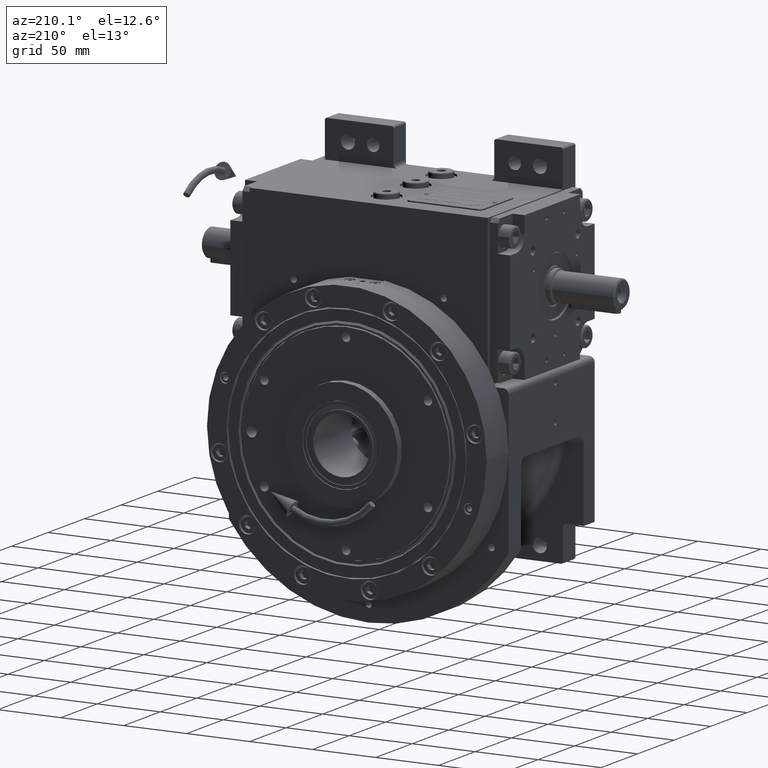
[diagram: clean part render]
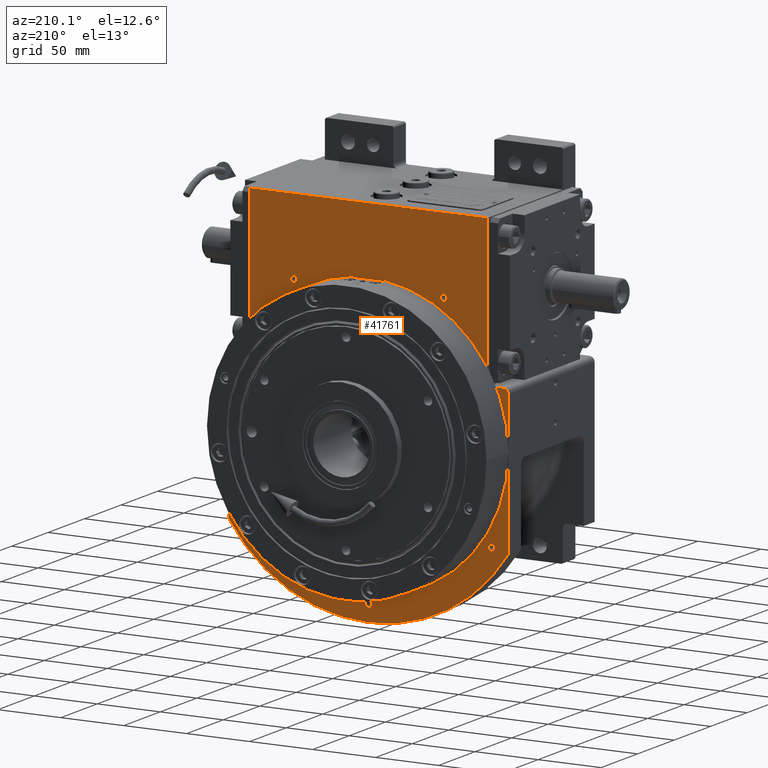
[diagram: same view with one face highlighted and labeled with its STEP entity id]
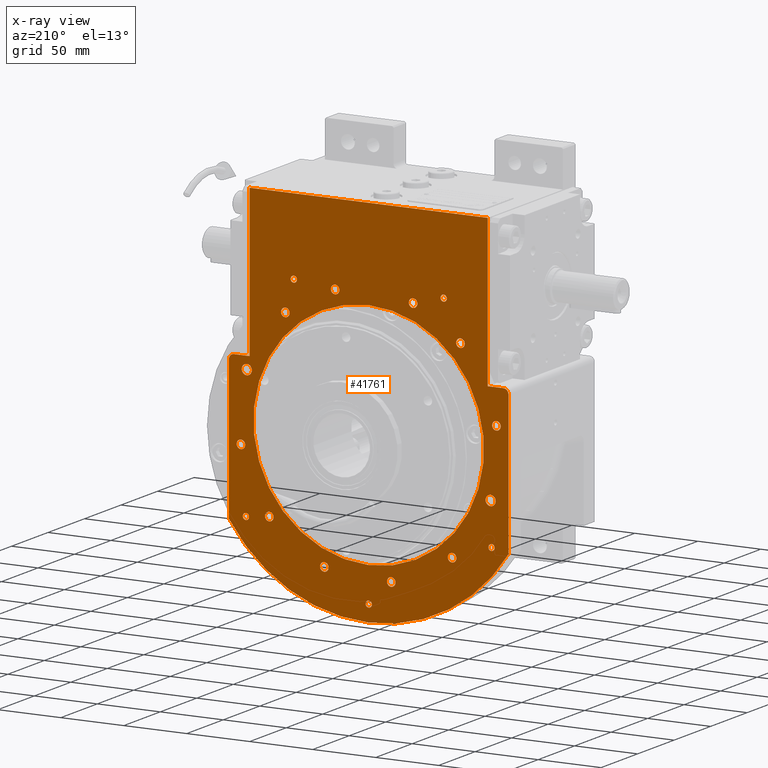
[diagram: x-ray of the same camera — body ghosted, the highlighted face saturated]
A machine part, auxiliary view. The second image highlights one B-rep face of the part: STEP entity #41761.
The next image is the same camera in x-ray: the body ghosted, the highlighted face saturated — about 0% of this face is hidden behind the body in this view.
In plain terms, the highlighted planar face has unit normal (0, 1, 0).
Its self-contained STEP definition (entity closure, byte-faithful):
#227 = EDGE_CURVE ( 'NONE', #44547, #17200, #36453, .T. ) ;
#294 = EDGE_CURVE ( 'NONE', #51834, #5863, #2268, .T. ) ;
#309 = CIRCLE ( 'NONE', #51069, 3.400000000000000355 ) ;
#405 = EDGE_CURVE ( 'NONE', #29475, #15967, #44179, .T. ) ;
#415 = DIRECTION ( 'NONE',  ( -1.000000000000000000, 0.000000000000000000, 0.000000000000000000 ) ) ;
#704 = VERTEX_POINT ( 'NONE', #35765 ) ;
#820 = EDGE_CURVE ( 'NONE', #44652, #11124, #50895, .T. ) ;
#851 = ORIENTED_EDGE ( 'NONE', *, *, #54852, .F. ) ;
#924 = CARTESIAN_POINT ( 'NONE',  ( -107.0000000000000000, 64.50000000000000000, 45.00000000000000000 ) ) ;
#927 = AXIS2_PLACEMENT_3D ( 'NONE', #26879, #21325, #53107 ) ;
#983 = CARTESIAN_POINT ( 'NONE',  ( 94.97909327038999550, 64.50000000000000000, -68.25559592577448598 ) ) ;
#1396 = CIRCLE ( 'NONE', #17903, 3.400000000000000355 ) ;
#1664 = VERTEX_POINT ( 'NONE', #23495 ) ;
#1729 = ORIENTED_EDGE ( 'NONE', *, *, #65168, .T. ) ;
#1762 = EDGE_CURVE ( 'NONE', #52508, #68018, #9017, .T. ) ;
#1954 = CARTESIAN_POINT ( 'NONE',  ( -38.62807476254390338, 64.50000000000000000, 96.78833994094861737 ) ) ;
#2165 = LINE ( 'NONE', #17687, #61062 ) ;
#2192 = DIRECTION ( 'NONE',  ( 1.000000000000000000, 0.000000000000000000, 0.000000000000000000 ) ) ;
#2268 = CIRCLE ( 'NONE', #29849, 2.500000000000000000 ) ;
#2438 = DIRECTION ( 'NONE',  ( 0.000000000000000000, 1.000000000000000000, 0.000000000000000000 ) ) ;
#2478 = EDGE_CURVE ( 'NONE', #63508, #60038, #50614, .T. ) ;
#2621 = AXIS2_PLACEMENT_3D ( 'NONE', #23602, #48829, #27407 ) ;
#3048 = CARTESIAN_POINT ( 'NONE',  ( -111.0000000000000000, 64.50000000000000000, 41.00000000000000000 ) ) ;
#3299 = CARTESIAN_POINT ( 'NONE',  ( 0.000000000000000000, 64.50000000000000000, 0.000000000000000000 ) ) ;
#3300 = ORIENTED_EDGE ( 'NONE', *, *, #47374, .T. ) ;
#3359 = AXIS2_PLACEMENT_3D ( 'NONE', #8230, #60410, #50720 ) ;
#3425 = FACE_BOUND ( 'NONE', #67729, .T. ) ;
#3777 = FACE_BOUND ( 'NONE', #18942, .T. ) ;
#3787 = VERTEX_POINT ( 'NONE', #924 ) ;
#3882 = EDGE_CURVE ( 'NONE', #39537, #32041, #45139, .T. ) ;
#3979 = DIRECTION ( 'NONE',  ( 0.000000000000000000, 0.000000000000000000, 1.000000000000000000 ) ) ;
#4327 = CIRCLE ( 'NONE', #5452, 4.000000000000003553 ) ;
#4536 = AXIS2_PLACEMENT_3D ( 'NONE', #11396, #37649, #58746 ) ;
#4726 = AXIS2_PLACEMENT_3D ( 'NONE', #57998, #27248, #22395 ) ;
#4900 = DIRECTION ( 'NONE',  ( 1.000000000000000000, 0.000000000000000000, -4.081702296416015997E-15 ) ) ;
#5452 = AXIS2_PLACEMENT_3D ( 'NONE', #13604, #51277, #61304 ) ;
#5565 = DIRECTION ( 'NONE',  ( 0.000000000000000000, 1.000000000000000000, 0.000000000000000000 ) ) ;
#5577 = EDGE_CURVE ( 'NONE', #28979, #3787, #4327, .T. ) ;
#5682 = DIRECTION ( 'NONE',  ( 0.000000000000000000, 1.000000000000000000, 0.000000000000000000 ) ) ;
#5693 = AXIS2_PLACEMENT_3D ( 'NONE', #29351, #50413, #18599 ) ;
#5863 = VERTEX_POINT ( 'NONE', #21043 ) ;
#6335 = ORIENTED_EDGE ( 'NONE', *, *, #39811, .F. ) ;
#6889 = EDGE_LOOP ( 'NONE', ( #66818, #44843 ) ) ;
#7258 = EDGE_CURVE ( 'NONE', #43189, #66049, #53484, .T. ) ;
#7272 = ORIENTED_EDGE ( 'NONE', *, *, #35098, .F. ) ;
#7365 = CARTESIAN_POINT ( 'NONE',  ( -107.0000000000000000, 64.50000000000000000, 45.00000000000000000 ) ) ;
#7367 = CARTESIAN_POINT ( 'NONE',  ( -94.50000000000000000, 64.50000000000000000, 45.00000000000000000 ) ) ;
#7947 = CARTESIAN_POINT ( 'NONE',  ( 62.80712379771350129, 64.50000000000000000, 78.90257764125479412 ) ) ;
#8150 = CARTESIAN_POINT ( 'NONE',  ( 96.78833994094853210, 64.50000000000000000, 39.22807476254396164 ) ) ;
#8171 = DIRECTION ( 'NONE',  ( 1.000000000000000000, 0.000000000000000000, 0.000000000000000000 ) ) ;
#8230 = CARTESIAN_POINT ( 'NONE',  ( -96.78833994094853210, 64.50000000000000000, -35.22807476254394743 ) ) ;
#8427 = DIRECTION ( 'NONE',  ( 0.000000000000000000, 1.000000000000000000, 0.000000000000000000 ) ) ;
#8482 = DIRECTION ( 'NONE',  ( -0.000000000000000000, -1.000000000000000000, -0.000000000000000000 ) ) ;
#8906 = AXIS2_PLACEMENT_3D ( 'NONE', #54413, #42989, #26795 ) ;
#9017 = CIRCLE ( 'NONE', #5693, 3.400000000000000355 ) ;
#9606 = CARTESIAN_POINT ( 'NONE',  ( -35.22807476254389769, 64.50000000000000000, 96.78833994094861737 ) ) ;
#9627 = EDGE_LOOP ( 'NONE', ( #35487, #851 ) ) ;
#9661 = DIRECTION ( 'NONE',  ( 1.000000000000000000, 0.000000000000000000, 0.000000000000000000 ) ) ;
#9709 = CARTESIAN_POINT ( 'NONE',  ( -62.80712379771350129, 64.50000000000000000, -78.90257764125469464 ) ) ;
#9867 = DIRECTION ( 'NONE',  ( 1.000000000000000000, 0.000000000000000000, 4.081702296416015997E-15 ) ) ;
#10534 = EDGE_LOOP ( 'NONE', ( #6335, #53895 ) ) ;
#10786 = ORIENTED_EDGE ( 'NONE', *, *, #1762, .F. ) ;
#10791 = AXIS2_PLACEMENT_3D ( 'NONE', #40552, #62640, #15282 ) ;
#10810 = VERTEX_POINT ( 'NONE', #33011 ) ;
#10858 = ORIENTED_EDGE ( 'NONE', *, *, #3882, .T. ) ;
#10928 = CARTESIAN_POINT ( 'NONE',  ( 31.82807476254389911, 64.50000000000000000, -96.78833994094861737 ) ) ;
#11027 = VERTEX_POINT ( 'NONE', #44752 ) ;
#11124 = VERTEX_POINT ( 'NONE', #40571 ) ;
#11268 = DIRECTION ( 'NONE',  ( 1.000000000000000000, 0.000000000000000000, 0.000000000000000000 ) ) ;
#11396 = CARTESIAN_POINT ( 'NONE',  ( -72.83199846221440055, 64.50000000000000000, 72.83199846221440055 ) ) ;
#11525 = LINE ( 'NONE', #7365, #60617 ) ;
#11670 = DIRECTION ( 'NONE',  ( 0.000000000000000000, 1.000000000000000000, 0.000000000000000000 ) ) ;
#11714 = EDGE_LOOP ( 'NONE', ( #67920, #58100 ) ) ;
#12127 = CARTESIAN_POINT ( 'NONE',  ( -99.97909327038999550, 64.50000000000000000, -68.25559592577448598 ) ) ;
#12422 = DIRECTION ( 'NONE',  ( 0.000000000000000000, 0.000000000000000000, 1.000000000000000000 ) ) ;
#12697 = EDGE_LOOP ( 'NONE', ( #26452, #67892 ) ) ;
#12752 = AXIS2_PLACEMENT_3D ( 'NONE', #12896, #28832, #13231 ) ;
#12754 = DIRECTION ( 'NONE',  ( 0.000000000000000000, 1.000000000000000000, 0.000000000000000000 ) ) ;
#12835 = DIRECTION ( 'NONE',  ( 0.000000000000000000, 1.000000000000000000, 0.000000000000000000 ) ) ;
#12849 = CARTESIAN_POINT ( 'NONE',  ( 2.500000000000000000, 64.50000000000000000, -119.0000000000000000 ) ) ;
#12896 = CARTESIAN_POINT ( 'NONE',  ( -66.20712379771349276, 64.50000000000000000, -78.90257764125469464 ) ) ;
#12947 = CIRCLE ( 'NONE', #25265, 132.0000000000000853 ) ;
#12991 = CARTESIAN_POINT ( 'NONE',  ( 107.0000000000000000, 64.50000000000000000, 45.00000000000000000 ) ) ;
#13231 = DIRECTION ( 'NONE',  ( 1.000000000000000000, 0.000000000000000000, 0.000000000000000000 ) ) ;
#13604 = CARTESIAN_POINT ( 'NONE',  ( -107.0000000000000000, 64.50000000000000000, 41.00000000000000000 ) ) ;
#13744 = EDGE_LOOP ( 'NONE', ( #58963, #18127 ) ) ;
#13791 = FACE_BOUND ( 'NONE', #51605, .T. ) ;
#13837 = DIRECTION ( 'NONE',  ( 0.000000000000000000, 1.000000000000000000, 0.000000000000000000 ) ) ;
#14161 = CARTESIAN_POINT ( 'NONE',  ( -59.50000000000000000, 64.50000000000000000, 103.0570230503481923 ) ) ;
#14668 = ORIENTED_EDGE ( 'NONE', *, *, #16806, .T. ) ;
#14708 = CIRCLE ( 'NONE', #2621, 3.400000000000000355 ) ;
#14793 = FACE_BOUND ( 'NONE', #25132, .T. ) ;
#15232 = CARTESIAN_POINT ( 'NONE',  ( 59.50000000000000000, 64.50000000000000000, 103.0570230503481923 ) ) ;
#15282 = DIRECTION ( 'NONE',  ( 1.000000000000000000, 0.000000000000000000, -2.040851148208007998E-15 ) ) ;
#15374 = EDGE_CURVE ( 'NONE', #28464, #58745, #20131, .T. ) ;
#15833 = CARTESIAN_POINT ( 'NONE',  ( -66.20712379771349276, 64.50000000000000000, -78.90257764125469464 ) ) ;
#15886 = EDGE_CURVE ( 'NONE', #10810, #28979, #2165, .T. ) ;
#15967 = VERTEX_POINT ( 'NONE', #23924 ) ;
#16302 = ORIENTED_EDGE ( 'NONE', *, *, #44094, .F. ) ;
#16364 = DIRECTION ( 'NONE',  ( 0.000000000000000000, 0.000000000000000000, -1.000000000000000000 ) ) ;
#16453 = CIRCLE ( 'NONE', #38524, 3.400000000000000355 ) ;
#16463 = LINE ( 'NONE', #21668, #21367 ) ;
#16698 = EDGE_CURVE ( 'NONE', #62587, #50656, #64120, .T. ) ;
#16806 = EDGE_CURVE ( 'NONE', #34114, #36448, #45387, .T. ) ;
#16942 = DIRECTION ( 'NONE',  ( 0.000000000000000000, 1.000000000000000000, 0.000000000000000000 ) ) ;
#17200 = VERTEX_POINT ( 'NONE', #58592 ) ;
#17256 = DIRECTION ( 'NONE',  ( -0.000000000000000000, -1.000000000000000000, -0.000000000000000000 ) ) ;
#17312 = CARTESIAN_POINT ( 'NONE',  ( 96.78833994094853210, 64.50000000000000000, 35.22807476254394743 ) ) ;
#17353 = DIRECTION ( 'NONE',  ( 1.000000000000000000, 0.000000000000000000, -4.081702296416015997E-15 ) ) ;
#17651 = DIRECTION ( 'NONE',  ( 0.000000000000000000, 1.000000000000000000, 0.000000000000000000 ) ) ;
#17687 = CARTESIAN_POINT ( 'NONE',  ( -111.0000000000000000, 64.50000000000000000, -71.43528539874399996 ) ) ;
#17775 = AXIS2_PLACEMENT_3D ( 'NONE', #35923, #36957, #58043 ) ;
#17831 = VECTOR ( 'NONE', #16364, 1000.000000000000000 ) ;
#17903 = AXIS2_PLACEMENT_3D ( 'NONE', #15833, #58704, #57323 ) ;
#17918 = DIRECTION ( 'NONE',  ( 0.000000000000000000, 1.000000000000000000, 0.000000000000000000 ) ) ;
#18127 = ORIENTED_EDGE ( 'NONE', *, *, #294, .F. ) ;
#18254 = CARTESIAN_POINT ( 'NONE',  ( -35.22807476254389769, 64.50000000000000000, 96.78833994094861737 ) ) ;
#18427 = CARTESIAN_POINT ( 'NONE',  ( -21.28576229969380051, 64.50000000000000000, -101.4351985602574047 ) ) ;
#18599 = DIRECTION ( 'NONE',  ( -1.000000000000000000, 0.000000000000000000, 0.000000000000000000 ) ) ;
#18624 = FACE_BOUND ( 'NONE', #38536, .T. ) ;
#18730 = EDGE_CURVE ( 'NONE', #3787, #56540, #11525, .T. ) ;
#18821 = CARTESIAN_POINT ( 'NONE',  ( 97.47909327039000971, 64.50000000000000000, -68.25559592577448598 ) ) ;
#18874 = ORIENTED_EDGE ( 'NONE', *, *, #57750, .T. ) ;
#18942 = EDGE_LOOP ( 'NONE', ( #10786, #43327 ) ) ;
#18951 = DIRECTION ( 'NONE',  ( 0.000000000000000000, 1.000000000000000000, 0.000000000000000000 ) ) ;
#19094 = DIRECTION ( 'NONE',  ( 1.000000000000000000, 0.000000000000000000, 0.000000000000000000 ) ) ;
#19297 = VERTEX_POINT ( 'NONE', #58282 ) ;
#19365 = CARTESIAN_POINT ( 'NONE',  ( 35.22807476254389769, 64.50000000000000000, -96.78833994094861737 ) ) ;
#19564 = ORIENTED_EDGE ( 'NONE', *, *, #7258, .F. ) ;
#19824 = ORIENTED_EDGE ( 'NONE', *, *, #58462, .F. ) ;
#20131 = CIRCLE ( 'NONE', #22371, 3.400000000000000355 ) ;
#20308 = VECTOR ( 'NONE', #11268, 1000.000000000000000 ) ;
#20447 = ORIENTED_EDGE ( 'NONE', *, *, #59197, .F. ) ;
#20552 = EDGE_CURVE ( 'NONE', #11124, #44652, #47588, .T. ) ;
#20644 = DIRECTION ( 'NONE',  ( 0.000000000000000000, 1.000000000000000000, 0.000000000000000000 ) ) ;
#20665 = AXIS2_PLACEMENT_3D ( 'NONE', #15232, #5565, #415 ) ;
#20954 = EDGE_CURVE ( 'NONE', #32041, #11027, #27132, .T. ) ;
#21043 = CARTESIAN_POINT ( 'NONE',  ( -2.500000000000000000, 64.50000000000000000, -119.0000000000000000 ) ) ;
#21284 = VERTEX_POINT ( 'NONE', #67129 ) ;
#21325 = DIRECTION ( 'NONE',  ( 0.000000000000000000, 1.000000000000000000, 0.000000000000000000 ) ) ;
#21367 = VECTOR ( 'NONE', #22010, 1000.000000000000000 ) ;
#21668 = CARTESIAN_POINT ( 'NONE',  ( 111.0000000000000000, 64.50000000000000000, 41.00000000000000000 ) ) ;
#21855 = CIRCLE ( 'NONE', #30697, 2.500000000000002220 ) ;
#22010 = DIRECTION ( 'NONE',  ( -6.319570704518690450E-16, 0.000000000000000000, -1.000000000000000000 ) ) ;
#22318 = AXIS2_PLACEMENT_3D ( 'NONE', #55607, #18951, #44557 ) ;
#22371 = AXIS2_PLACEMENT_3D ( 'NONE', #9606, #30701, #33346 ) ;
#22395 = DIRECTION ( 'NONE',  ( 1.000000000000000000, 0.000000000000000000, -2.040851148208007998E-15 ) ) ;
#22709 = ORIENTED_EDGE ( 'NONE', *, *, #53782, .F. ) ;
#22793 = EDGE_LOOP ( 'NONE', ( #3300, #1729, #52317, #25414, #43909, #44411, #10858, #65104, #39705, #14668 ) ) ;
#22815 = CARTESIAN_POINT ( 'NONE',  ( 0.000000000000000000, 64.50000000000000000, 0.000000000000000000 ) ) ;
#23173 = CARTESIAN_POINT ( 'NONE',  ( 7.105427357600998703E-15, 64.50000000000000000, 0.000000000000000000 ) ) ;
#23307 = VERTEX_POINT ( 'NONE', #62815 ) ;
#23495 = CARTESIAN_POINT ( 'NONE',  ( -76.23199846221440623, 64.50000000000000000, 72.83199846221440055 ) ) ;
#23602 = CARTESIAN_POINT ( 'NONE',  ( 101.4351985602574047, 64.50000000000000000, -17.88576229969384812 ) ) ;
#23924 = CARTESIAN_POINT ( 'NONE',  ( -62.00000000000000000, 64.50000000000000000, 103.0570230503481923 ) ) ;
#24113 = CIRCLE ( 'NONE', #48376, 3.400000000000000355 ) ;
#24197 = LINE ( 'NONE', #35566, #50682 ) ;
#24208 = CARTESIAN_POINT ( 'NONE',  ( -14.48576229969382112, 64.50000000000000000, -101.4351985602574047 ) ) ;
#24279 = CIRCLE ( 'NONE', #40787, 2.500000000000002220 ) ;
#24314 = EDGE_CURVE ( 'NONE', #66662, #23307, #14708, .T. ) ;
#24510 = VERTEX_POINT ( 'NONE', #67078 ) ;
#24529 = FACE_BOUND ( 'NONE', #50006, .T. ) ;
#25008 = DIRECTION ( 'NONE',  ( 1.000000000000000000, 0.000000000000000000, -5.551115123125777969E-15 ) ) ;
#25132 = EDGE_LOOP ( 'NONE', ( #64365, #37217 ) ) ;
#25192 = FACE_BOUND ( 'NONE', #48228, .T. ) ;
#25265 = AXIS2_PLACEMENT_3D ( 'NONE', #23173, #2438, #64969 ) ;
#25414 = ORIENTED_EDGE ( 'NONE', *, *, #5577, .T. ) ;
#25503 = AXIS2_PLACEMENT_3D ( 'NONE', #43104, #11670, #27587 ) ;
#25806 = CIRCLE ( 'NONE', #33512, 4.000000000000010658 ) ;
#25949 = CIRCLE ( 'NONE', #45777, 3.400000000000000355 ) ;
#26175 = EDGE_CURVE ( 'NONE', #56540, #39537, #24197, .T. ) ;
#26452 = ORIENTED_EDGE ( 'NONE', *, *, #53324, .F. ) ;
#26795 = DIRECTION ( 'NONE',  ( -1.000000000000000000, 0.000000000000000000, 0.000000000000000000 ) ) ;
#26879 = CARTESIAN_POINT ( 'NONE',  ( -97.47909327039000971, 64.50000000000000000, -68.25559592577448598 ) ) ;
#27132 = LINE ( 'NONE', #48183, #17831 ) ;
#27248 = DIRECTION ( 'NONE',  ( 0.000000000000000000, 1.000000000000000000, 0.000000000000000000 ) ) ;
#27407 = DIRECTION ( 'NONE',  ( -1.000000000000000000, 0.000000000000000000, 2.040851148208007998E-15 ) ) ;
#27428 = CARTESIAN_POINT ( 'NONE',  ( -69.60712379771349845, 64.50000000000000000, -78.90257764125469464 ) ) ;
#27587 = DIRECTION ( 'NONE',  ( -1.000000000000000000, 0.000000000000000000, 0.000000000000000000 ) ) ;
#27916 = CIRCLE ( 'NONE', #42240, 2.500000000000002220 ) ;
#27938 = VERTEX_POINT ( 'NONE', #10928 ) ;
#28464 = VERTEX_POINT ( 'NONE', #29175 ) ;
#28499 = CIRCLE ( 'NONE', #10791, 3.400000000000000355 ) ;
#28662 = DIRECTION ( 'NONE',  ( -1.000000000000000000, 0.000000000000000000, 0.000000000000000000 ) ) ;
#28832 = DIRECTION ( 'NONE',  ( 0.000000000000000000, 1.000000000000000000, 0.000000000000000000 ) ) ;
#28845 = EDGE_CURVE ( 'NONE', #58745, #28464, #35465, .T. ) ;
#28941 = AXIS2_PLACEMENT_3D ( 'NONE', #61332, #40573, #29891 ) ;
#28979 = VERTEX_POINT ( 'NONE', #3048 ) ;
#29175 = CARTESIAN_POINT ( 'NONE',  ( -31.82807476254389911, 64.50000000000000000, 96.78833994094861737 ) ) ;
#29258 = CARTESIAN_POINT ( 'NONE',  ( -57.00000000000000000, 64.50000000000000000, 103.0570230503481923 ) ) ;
#29351 = CARTESIAN_POINT ( 'NONE',  ( 66.20712379771349276, 64.50000000000000000, 78.90257764125479412 ) ) ;
#29375 = FACE_BOUND ( 'NONE', #9627, .T. ) ;
#29475 = VERTEX_POINT ( 'NONE', #29258 ) ;
#29849 = AXIS2_PLACEMENT_3D ( 'NONE', #67376, #13837, #9661 ) ;
#29891 = DIRECTION ( 'NONE',  ( -1.000000000000000000, 0.000000000000000000, 2.040851148208007998E-15 ) ) ;
#30174 = EDGE_CURVE ( 'NONE', #15967, #29475, #45395, .T. ) ;
#30442 = EDGE_CURVE ( 'NONE', #1664, #19297, #51996, .T. ) ;
#30490 = EDGE_LOOP ( 'NONE', ( #19564, #46600 ) ) ;
#30697 = AXIS2_PLACEMENT_3D ( 'NONE', #66470, #8427, #25008 ) ;
#30701 = DIRECTION ( 'NONE',  ( 0.000000000000000000, 1.000000000000000000, 0.000000000000000000 ) ) ;
#30763 = CIRCLE ( 'NONE', #61686, 3.400000000000000355 ) ;
#30909 = ORIENTED_EDGE ( 'NONE', *, *, #64153, .F. ) ;
#31040 = AXIS2_PLACEMENT_3D ( 'NONE', #18254, #17918, #28662 ) ;
#31340 = LINE ( 'NONE', #63466, #20308 ) ;
#31461 = EDGE_LOOP ( 'NONE', ( #33678, #50465 ) ) ;
#31976 = CARTESIAN_POINT ( 'NONE',  ( -94.97909327038999550, 64.50000000000000000, -68.25559592577448598 ) ) ;
#32041 = VERTEX_POINT ( 'NONE', #33147 ) ;
#32376 = AXIS2_PLACEMENT_3D ( 'NONE', #35656, #56747, #4900 ) ;
#32515 = CIRCLE ( 'NONE', #52383, 91.50000000000000000 ) ;
#32756 = ORIENTED_EDGE ( 'NONE', *, *, #28845, .F. ) ;
#33011 = CARTESIAN_POINT ( 'NONE',  ( -111.0000000000000000, 64.50000000000000000, -71.43528539874399996 ) ) ;
#33147 = CARTESIAN_POINT ( 'NONE',  ( 94.50000000000000000, 64.50000000000000000, 163.5000000000000000 ) ) ;
#33346 = DIRECTION ( 'NONE',  ( 1.000000000000000000, 0.000000000000000000, 0.000000000000000000 ) ) ;
#33457 = CIRCLE ( 'NONE', #32376, 3.400000000000000355 ) ;
#33512 = AXIS2_PLACEMENT_3D ( 'NONE', #33541, #16942, #37335 ) ;
#33541 = CARTESIAN_POINT ( 'NONE',  ( 96.78833994094853210, 64.50000000000000000, 35.22807476254394743 ) ) ;
#33588 = DIRECTION ( 'NONE',  ( -1.000000000000000000, 0.000000000000000000, 0.000000000000000000 ) ) ;
#33596 = EDGE_LOOP ( 'NONE', ( #35659, #62556 ) ) ;
#33618 = DIRECTION ( 'NONE',  ( 0.000000000000000000, 0.000000000000000000, 1.000000000000000000 ) ) ;
#33634 = EDGE_CURVE ( 'NONE', #5863, #51834, #64253, .T. ) ;
#33678 = ORIENTED_EDGE ( 'NONE', *, *, #820, .F. ) ;
#33785 = DIRECTION ( 'NONE',  ( 0.000000000000000000, 1.000000000000000000, 0.000000000000000000 ) ) ;
#34114 = VERTEX_POINT ( 'NONE', #12991 ) ;
#34882 = CARTESIAN_POINT ( 'NONE',  ( 0.000000000000000000, 64.50000000000000000, 0.000000000000000000 ) ) ;
#34896 = DIRECTION ( 'NONE',  ( 0.000000000000000000, 0.000000000000000000, 1.000000000000000000 ) ) ;
#34945 = EDGE_CURVE ( 'NONE', #44118, #63067, #43365, .T. ) ;
#34986 = DIRECTION ( 'NONE',  ( 0.000000000000000000, 1.000000000000000000, 0.000000000000000000 ) ) ;
#35098 = EDGE_CURVE ( 'NONE', #59782, #61966, #27916, .T. ) ;
#35210 = FACE_BOUND ( 'NONE', #65866, .T. ) ;
#35255 = DIRECTION ( 'NONE',  ( 0.000000000000000000, 1.000000000000000000, 0.000000000000000000 ) ) ;
#35465 = CIRCLE ( 'NONE', #31040, 3.400000000000000355 ) ;
#35487 = ORIENTED_EDGE ( 'NONE', *, *, #30442, .F. ) ;
#35551 = ORIENTED_EDGE ( 'NONE', *, *, #34945, .T. ) ;
#35566 = CARTESIAN_POINT ( 'NONE',  ( -94.50000000000000000, 64.50000000000000000, 45.00000000000000000 ) ) ;
#35656 = CARTESIAN_POINT ( 'NONE',  ( -72.83199846221440055, 64.50000000000000000, 72.83199846221440055 ) ) ;
#35659 = ORIENTED_EDGE ( 'NONE', *, *, #24314, .F. ) ;
#35765 = CARTESIAN_POINT ( 'NONE',  ( -98.03519856025739898, 64.50000000000000000, 17.88576229969384812 ) ) ;
#35923 = CARTESIAN_POINT ( 'NONE',  ( 26.65836164555964771, 64.50000000000000000, 99.49036010777409444 ) ) ;
#36144 = EDGE_LOOP ( 'NONE', ( #22709, #20447 ) ) ;
#36448 = VERTEX_POINT ( 'NONE', #48397 ) ;
#36453 = CIRCLE ( 'NONE', #64060, 4.000000000000010658 ) ;
#36799 = CARTESIAN_POINT ( 'NONE',  ( -17.88576229969384812, 64.50000000000000000, -101.4351985602574047 ) ) ;
#36957 = DIRECTION ( 'NONE',  ( 0.000000000000000000, 1.000000000000000000, 0.000000000000000000 ) ) ;
#37217 = ORIENTED_EDGE ( 'NONE', *, *, #405, .F. ) ;
#37238 = CIRCLE ( 'NONE', #20665, 2.500000000000002220 ) ;
#37335 = DIRECTION ( 'NONE',  ( 0.000000000000000000, 0.000000000000000000, 1.000000000000000000 ) ) ;
#37649 = DIRECTION ( 'NONE',  ( 0.000000000000000000, 1.000000000000000000, 0.000000000000000000 ) ) ;
#38524 = AXIS2_PLACEMENT_3D ( 'NONE', #39470, #60905, #17353 ) ;
#38536 = EDGE_LOOP ( 'NONE', ( #18874, #35551 ) ) ;
#38741 = EDGE_CURVE ( 'NONE', #38894, #21284, #37238, .T. ) ;
#38745 = DIRECTION ( 'NONE',  ( 0.000000000000000000, 0.000000000000000000, 1.000000000000000000 ) ) ;
#38754 = CARTESIAN_POINT ( 'NONE',  ( -59.50000000000000000, 64.50000000000000000, 103.0570230503481923 ) ) ;
#38894 = VERTEX_POINT ( 'NONE', #43575 ) ;
#38932 = CIRCLE ( 'NONE', #4726, 3.400000000000000355 ) ;
#39470 = CARTESIAN_POINT ( 'NONE',  ( 78.90257764125479412, 64.50000000000000000, -66.20712379771349276 ) ) ;
#39473 = EDGE_CURVE ( 'NONE', #21284, #38894, #21855, .T. ) ;
#39520 = AXIS2_PLACEMENT_3D ( 'NONE', #34882, #66665, #51127 ) ;
#39537 = VERTEX_POINT ( 'NONE', #56097 ) ;
#39624 = AXIS2_PLACEMENT_3D ( 'NONE', #53411, #64453, #54077 ) ;
#39705 = ORIENTED_EDGE ( 'NONE', *, *, #55917, .T. ) ;
#39721 = PLANE ( 'NONE',  #39520 ) ;
#39811 = EDGE_CURVE ( 'NONE', #60038, #63508, #58322, .T. ) ;
#39930 = DIRECTION ( 'NONE',  ( 1.000000000000000000, 0.000000000000000000, 0.000000000000000000 ) ) ;
#39971 = CIRCLE ( 'NONE', #28941, 3.400000000000000355 ) ;
#40369 = ORIENTED_EDGE ( 'NONE', *, *, #40548, .F. ) ;
#40407 = FACE_BOUND ( 'NONE', #6889, .T. ) ;
#40548 = EDGE_CURVE ( 'NONE', #53482, #66502, #40707, .T. ) ;
#40552 = CARTESIAN_POINT ( 'NONE',  ( -101.4351985602574047, 64.50000000000000000, 17.88576229969384812 ) ) ;
#40571 = CARTESIAN_POINT ( 'NONE',  ( 30.05836164555964984, 64.50000000000000000, 99.49036010777409444 ) ) ;
#40573 = DIRECTION ( 'NONE',  ( 0.000000000000000000, 1.000000000000000000, 0.000000000000000000 ) ) ;
#40707 = CIRCLE ( 'NONE', #39624, 4.000000000000007105 ) ;
#40787 = AXIS2_PLACEMENT_3D ( 'NONE', #18821, #60661, #39930 ) ;
#40845 = EDGE_CURVE ( 'NONE', #704, #24510, #28499, .T. ) ;
#41087 = FACE_BOUND ( 'NONE', #36144, .T. ) ;
#41159 = AXIS2_PLACEMENT_3D ( 'NONE', #22815, #17256, #12422 ) ;
#41728 = DIRECTION ( 'NONE',  ( -1.000000000000000000, 0.000000000000000000, 4.081702296416015997E-15 ) ) ;
#41761 = ADVANCED_FACE ( 'NONE', ( #18624, #25192, #40407, #46267, #3777, #29375, #3425, #61159, #67331, #61478, #24529, #35210, #41087, #62168, #66994, #13791, #14793, #45604, #56968 ), #39721, .T. ) ;
#42240 = AXIS2_PLACEMENT_3D ( 'NONE', #60121, #12754, #55616 ) ;
#42474 = EDGE_CURVE ( 'NONE', #66049, #43189, #16453, .T. ) ;
#42544 = VERTEX_POINT ( 'NONE', #9709 ) ;
#42563 = CIRCLE ( 'NONE', #12752, 3.400000000000000355 ) ;
#42878 = AXIS2_PLACEMENT_3D ( 'NONE', #59511, #12835, #43267 ) ;
#42989 = DIRECTION ( 'NONE',  ( 0.000000000000000000, 1.000000000000000000, 0.000000000000000000 ) ) ;
#42998 = VECTOR ( 'NONE', #8171, 1000.000000000000000 ) ;
#43104 = CARTESIAN_POINT ( 'NONE',  ( -17.88576229969380194, 64.50000000000000000, -101.4351985602574047 ) ) ;
#43189 = VERTEX_POINT ( 'NONE', #59710 ) ;
#43261 = VERTEX_POINT ( 'NONE', #65221 ) ;
#43267 = DIRECTION ( 'NONE',  ( -1.000000000000000000, 0.000000000000000000, 0.000000000000000000 ) ) ;
#43327 = ORIENTED_EDGE ( 'NONE', *, *, #54609, .F. ) ;
#43365 = CIRCLE ( 'NONE', #41159, 91.50000000000000000 ) ;
#43575 = CARTESIAN_POINT ( 'NONE',  ( 57.00000000000000000, 64.50000000000000000, 103.0570230503481923 ) ) ;
#43760 = CARTESIAN_POINT ( 'NONE',  ( 99.97909327038999550, 64.50000000000000000, -68.25559592577448598 ) ) ;
#43909 = ORIENTED_EDGE ( 'NONE', *, *, #18730, .T. ) ;
#44094 = EDGE_CURVE ( 'NONE', #66502, #53482, #55262, .T. ) ;
#44118 = VERTEX_POINT ( 'NONE', #50381 ) ;
#44179 = CIRCLE ( 'NONE', #49724, 2.500000000000002220 ) ;
#44411 = ORIENTED_EDGE ( 'NONE', *, *, #26175, .T. ) ;
#44547 = VERTEX_POINT ( 'NONE', #8150 ) ;
#44557 = DIRECTION ( 'NONE',  ( -1.000000000000000000, 0.000000000000000000, 0.000000000000000000 ) ) ;
#44652 = VERTEX_POINT ( 'NONE', #56156 ) ;
#44752 = CARTESIAN_POINT ( 'NONE',  ( 94.50000000000000000, 64.50000000000000000, 45.00000000000000000 ) ) ;
#44843 = ORIENTED_EDGE ( 'NONE', *, *, #49192, .F. ) ;
#45018 = VERTEX_POINT ( 'NONE', #59921 ) ;
#45139 = LINE ( 'NONE', #55844, #42998 ) ;
#45295 = DIRECTION ( 'NONE',  ( 0.000000000000000000, 1.000000000000000000, 0.000000000000000000 ) ) ;
#45387 = CIRCLE ( 'NONE', #67416, 3.999999999999996447 ) ;
#45395 = CIRCLE ( 'NONE', #64131, 2.500000000000002220 ) ;
#45604 = FACE_BOUND ( 'NONE', #11714, .T. ) ;
#45777 = AXIS2_PLACEMENT_3D ( 'NONE', #19365, #45295, #55331 ) ;
#45839 = ORIENTED_EDGE ( 'NONE', *, *, #16698, .F. ) ;
#46267 = FACE_BOUND ( 'NONE', #12697, .T. ) ;
#46600 = ORIENTED_EDGE ( 'NONE', *, *, #42474, .F. ) ;
#46839 = CARTESIAN_POINT ( 'NONE',  ( 69.60712379771349845, 64.50000000000000000, 78.90257764125479412 ) ) ;
#46859 = CARTESIAN_POINT ( 'NONE',  ( 35.22807476254389769, 64.50000000000000000, -96.78833994094861737 ) ) ;
#46932 = CARTESIAN_POINT ( 'NONE',  ( 78.90257764125479412, 64.50000000000000000, -66.20712379771359224 ) ) ;
#47374 = EDGE_CURVE ( 'NONE', #36448, #43261, #16463, .T. ) ;
#47588 = CIRCLE ( 'NONE', #17775, 3.400000000000000355 ) ;
#48183 = CARTESIAN_POINT ( 'NONE',  ( 94.50000000000000000, 64.50000000000000000, 163.5000000000000000 ) ) ;
#48228 = EDGE_LOOP ( 'NONE', ( #16302, #40369 ) ) ;
#48376 = AXIS2_PLACEMENT_3D ( 'NONE', #36799, #5682, #57890 ) ;
#48397 = CARTESIAN_POINT ( 'NONE',  ( 111.0000000000000000, 64.50000000000000000, 41.00000000000000000 ) ) ;
#48478 = EDGE_CURVE ( 'NONE', #23307, #66662, #38932, .T. ) ;
#48763 = CARTESIAN_POINT ( 'NONE',  ( -96.78833994094853210, 64.50000000000000000, -31.22807476254394388 ) ) ;
#48829 = DIRECTION ( 'NONE',  ( 0.000000000000000000, 1.000000000000000000, 0.000000000000000000 ) ) ;
#49129 = ORIENTED_EDGE ( 'NONE', *, *, #67608, .F. ) ;
#49192 = EDGE_CURVE ( 'NONE', #17200, #44547, #25806, .T. ) ;
#49724 = AXIS2_PLACEMENT_3D ( 'NONE', #14161, #35255, #51831 ) ;
#50006 = EDGE_LOOP ( 'NONE', ( #19824, #30909 ) ) ;
#50381 = CARTESIAN_POINT ( 'NONE',  ( 1.120551821219827868E-14, 64.50000000000000000, 91.50000000000000000 ) ) ;
#50413 = DIRECTION ( 'NONE',  ( 0.000000000000000000, 1.000000000000000000, 0.000000000000000000 ) ) ;
#50465 = ORIENTED_EDGE ( 'NONE', *, *, #20552, .F. ) ;
#50614 = CIRCLE ( 'NONE', #927, 2.500000000000002220 ) ;
#50656 = VERTEX_POINT ( 'NONE', #24208 ) ;
#50682 = VECTOR ( 'NONE', #34896, 1000.000000000000000 ) ;
#50720 = DIRECTION ( 'NONE',  ( 0.000000000000000000, 0.000000000000000000, 1.000000000000000000 ) ) ;
#50895 = CIRCLE ( 'NONE', #8906, 3.400000000000000355 ) ;
#51069 = AXIS2_PLACEMENT_3D ( 'NONE', #55734, #34986, #19094 ) ;
#51127 = DIRECTION ( 'NONE',  ( 1.000000000000000000, 0.000000000000000000, 0.000000000000000000 ) ) ;
#51277 = DIRECTION ( 'NONE',  ( 0.000000000000000000, 1.000000000000000000, 0.000000000000000000 ) ) ;
#51305 = CARTESIAN_POINT ( 'NONE',  ( -96.78833994094853210, 64.50000000000000000, -39.22807476254396164 ) ) ;
#51605 = EDGE_LOOP ( 'NONE', ( #7272, #49129 ) ) ;
#51831 = DIRECTION ( 'NONE',  ( 1.000000000000000000, 0.000000000000000000, 0.000000000000000000 ) ) ;
#51834 = VERTEX_POINT ( 'NONE', #12849 ) ;
#51996 = CIRCLE ( 'NONE', #4536, 3.400000000000000355 ) ;
#52317 = ORIENTED_EDGE ( 'NONE', *, *, #15886, .T. ) ;
#52383 = AXIS2_PLACEMENT_3D ( 'NONE', #3299, #8482, #3979 ) ;
#52508 = VERTEX_POINT ( 'NONE', #7947 ) ;
#53107 = DIRECTION ( 'NONE',  ( 1.000000000000000000, 0.000000000000000000, 0.000000000000000000 ) ) ;
#53324 = EDGE_CURVE ( 'NONE', #24510, #704, #39971, .T. ) ;
#53411 = CARTESIAN_POINT ( 'NONE',  ( -96.78833994094853210, 64.50000000000000000, -35.22807476254394743 ) ) ;
#53482 = VERTEX_POINT ( 'NONE', #51305 ) ;
#53484 = CIRCLE ( 'NONE', #66742, 3.400000000000000355 ) ;
#53782 = EDGE_CURVE ( 'NONE', #65949, #42544, #1396, .T. ) ;
#53848 = ORIENTED_EDGE ( 'NONE', *, *, #15374, .F. ) ;
#53895 = ORIENTED_EDGE ( 'NONE', *, *, #2478, .F. ) ;
#54077 = DIRECTION ( 'NONE',  ( 0.000000000000000000, 0.000000000000000000, 1.000000000000000000 ) ) ;
#54377 = CARTESIAN_POINT ( 'NONE',  ( 82.30257764125479980, 64.50000000000000000, -66.20712379771359224 ) ) ;
#54413 = CARTESIAN_POINT ( 'NONE',  ( 26.65836164555964771, 64.50000000000000000, 99.49036010777409444 ) ) ;
#54609 = EDGE_CURVE ( 'NONE', #68018, #52508, #309, .T. ) ;
#54852 = EDGE_CURVE ( 'NONE', #19297, #1664, #33457, .T. ) ;
#55262 = CIRCLE ( 'NONE', #3359, 4.000000000000007105 ) ;
#55331 = DIRECTION ( 'NONE',  ( -1.000000000000000000, 0.000000000000000000, -4.081702296416015997E-15 ) ) ;
#55547 = CARTESIAN_POINT ( 'NONE',  ( 107.0000000000000000, 64.50000000000000000, 41.00000000000000000 ) ) ;
#55607 = CARTESIAN_POINT ( 'NONE',  ( 2.220446049250315053E-16, 64.50000000000000000, -119.0000000000000000 ) ) ;
#55616 = DIRECTION ( 'NONE',  ( -1.000000000000000000, 0.000000000000000000, 0.000000000000000000 ) ) ;
#55734 = CARTESIAN_POINT ( 'NONE',  ( 66.20712379771349276, 64.50000000000000000, 78.90257764125479412 ) ) ;
#55844 = CARTESIAN_POINT ( 'NONE',  ( -94.50000000000000000, 64.50000000000000000, 163.5000000000000000 ) ) ;
#55917 = EDGE_CURVE ( 'NONE', #11027, #34114, #31340, .T. ) ;
#56097 = CARTESIAN_POINT ( 'NONE',  ( -94.50000000000000000, 64.50000000000000000, 163.5000000000000000 ) ) ;
#56156 = CARTESIAN_POINT ( 'NONE',  ( 23.25836164555964913, 64.50000000000000000, 99.49036010777409444 ) ) ;
#56540 = VERTEX_POINT ( 'NONE', #7367 ) ;
#56747 = DIRECTION ( 'NONE',  ( 0.000000000000000000, 1.000000000000000000, 0.000000000000000000 ) ) ;
#56968 = FACE_OUTER_BOUND ( 'NONE', #22793, .T. ) ;
#57323 = DIRECTION ( 'NONE',  ( -1.000000000000000000, 0.000000000000000000, 0.000000000000000000 ) ) ;
#57750 = EDGE_CURVE ( 'NONE', #63067, #44118, #32515, .T. ) ;
#57890 = DIRECTION ( 'NONE',  ( 1.000000000000000000, 0.000000000000000000, -4.081702296416015997E-15 ) ) ;
#57998 = CARTESIAN_POINT ( 'NONE',  ( 101.4351985602574047, 64.50000000000000000, -17.88576229969380194 ) ) ;
#58043 = DIRECTION ( 'NONE',  ( 1.000000000000000000, 0.000000000000000000, 0.000000000000000000 ) ) ;
#58100 = ORIENTED_EDGE ( 'NONE', *, *, #39473, .F. ) ;
#58282 = CARTESIAN_POINT ( 'NONE',  ( -69.43199846221439486, 64.50000000000000000, 72.83199846221440055 ) ) ;
#58322 = CIRCLE ( 'NONE', #42878, 2.500000000000002220 ) ;
#58462 = EDGE_CURVE ( 'NONE', #27938, #45018, #25949, .T. ) ;
#58592 = CARTESIAN_POINT ( 'NONE',  ( 96.78833994094853210, 64.50000000000000000, 31.22807476254394388 ) ) ;
#58704 = DIRECTION ( 'NONE',  ( 0.000000000000000000, 1.000000000000000000, 0.000000000000000000 ) ) ;
#58745 = VERTEX_POINT ( 'NONE', #1954 ) ;
#58746 = DIRECTION ( 'NONE',  ( -1.000000000000000000, 0.000000000000000000, 4.081702296416015997E-15 ) ) ;
#58963 = ORIENTED_EDGE ( 'NONE', *, *, #33634, .F. ) ;
#59197 = EDGE_CURVE ( 'NONE', #42544, #65949, #42563, .T. ) ;
#59511 = CARTESIAN_POINT ( 'NONE',  ( -97.47909327039000971, 64.50000000000000000, -68.25559592577448598 ) ) ;
#59710 = CARTESIAN_POINT ( 'NONE',  ( 75.50257764125480264, 64.50000000000000000, -66.20712379771359224 ) ) ;
#59782 = VERTEX_POINT ( 'NONE', #983 ) ;
#59856 = DIRECTION ( 'NONE',  ( 0.000000000000000000, 1.000000000000000000, 0.000000000000000000 ) ) ;
#59921 = CARTESIAN_POINT ( 'NONE',  ( 38.62807476254390338, 64.50000000000000000, -96.78833994094861737 ) ) ;
#60038 = VERTEX_POINT ( 'NONE', #12127 ) ;
#60121 = CARTESIAN_POINT ( 'NONE',  ( 97.47909327039000971, 64.50000000000000000, -68.25559592577448598 ) ) ;
#60155 = CARTESIAN_POINT ( 'NONE',  ( 98.03519856025749846, 64.50000000000000000, -17.88576229969384812 ) ) ;
#60410 = DIRECTION ( 'NONE',  ( 0.000000000000000000, 1.000000000000000000, 0.000000000000000000 ) ) ;
#60617 = VECTOR ( 'NONE', #2192, 1000.000000000000000 ) ;
#60661 = DIRECTION ( 'NONE',  ( 0.000000000000000000, 1.000000000000000000, 0.000000000000000000 ) ) ;
#60905 = DIRECTION ( 'NONE',  ( 0.000000000000000000, 1.000000000000000000, 0.000000000000000000 ) ) ;
#61062 = VECTOR ( 'NONE', #33618, 1000.000000000000000 ) ;
#61159 = FACE_BOUND ( 'NONE', #31461, .T. ) ;
#61304 = DIRECTION ( 'NONE',  ( -1.000000000000000000, 0.000000000000000000, -3.469446951953611033E-15 ) ) ;
#61332 = CARTESIAN_POINT ( 'NONE',  ( -101.4351985602574047, 64.50000000000000000, 17.88576229969384812 ) ) ;
#61478 = FACE_BOUND ( 'NONE', #30490, .T. ) ;
#61686 = AXIS2_PLACEMENT_3D ( 'NONE', #46859, #67591, #9867 ) ;
#61966 = VERTEX_POINT ( 'NONE', #43760 ) ;
#62168 = FACE_BOUND ( 'NONE', #13744, .T. ) ;
#62212 = EDGE_CURVE ( 'NONE', #50656, #62587, #24113, .T. ) ;
#62556 = ORIENTED_EDGE ( 'NONE', *, *, #48478, .F. ) ;
#62587 = VERTEX_POINT ( 'NONE', #18427 ) ;
#62640 = DIRECTION ( 'NONE',  ( 0.000000000000000000, 1.000000000000000000, 0.000000000000000000 ) ) ;
#62815 = CARTESIAN_POINT ( 'NONE',  ( 104.8351985602573961, 64.50000000000000000, -17.88576229969384812 ) ) ;
#63067 = VERTEX_POINT ( 'NONE', #63837 ) ;
#63466 = CARTESIAN_POINT ( 'NONE',  ( 94.50000000000000000, 64.50000000000000000, 45.00000000000000000 ) ) ;
#63508 = VERTEX_POINT ( 'NONE', #31976 ) ;
#63837 = CARTESIAN_POINT ( 'NONE',  ( 0.000000000000000000, 64.50000000000000000, -91.50000000000000000 ) ) ;
#64060 = AXIS2_PLACEMENT_3D ( 'NONE', #17312, #17651, #38745 ) ;
#64120 = CIRCLE ( 'NONE', #25503, 3.400000000000000355 ) ;
#64131 = AXIS2_PLACEMENT_3D ( 'NONE', #38754, #59856, #33588 ) ;
#64153 = EDGE_CURVE ( 'NONE', #45018, #27938, #30763, .T. ) ;
#64253 = CIRCLE ( 'NONE', #22318, 2.500000000000000000 ) ;
#64365 = ORIENTED_EDGE ( 'NONE', *, *, #30174, .F. ) ;
#64453 = DIRECTION ( 'NONE',  ( 0.000000000000000000, 1.000000000000000000, 0.000000000000000000 ) ) ;
#64969 = DIRECTION ( 'NONE',  ( 0.8409090909090906063, 0.000000000000000000, -0.5411764045359397368 ) ) ;
#65104 = ORIENTED_EDGE ( 'NONE', *, *, #20954, .T. ) ;
#65168 = EDGE_CURVE ( 'NONE', #43261, #10810, #12947, .T. ) ;
#65210 = DIRECTION ( 'NONE',  ( 3.469446951953617344E-15, 0.000000000000000000, 1.000000000000000000 ) ) ;
#65221 = CARTESIAN_POINT ( 'NONE',  ( 111.0000000000000000, 64.50000000000000000, -71.43528539874399996 ) ) ;
#65866 = EDGE_LOOP ( 'NONE', ( #45839, #66740 ) ) ;
#65949 = VERTEX_POINT ( 'NONE', #27428 ) ;
#66049 = VERTEX_POINT ( 'NONE', #54377 ) ;
#66470 = CARTESIAN_POINT ( 'NONE',  ( 59.50000000000000000, 64.50000000000000000, 103.0570230503481923 ) ) ;
#66502 = VERTEX_POINT ( 'NONE', #48763 ) ;
#66662 = VERTEX_POINT ( 'NONE', #60155 ) ;
#66665 = DIRECTION ( 'NONE',  ( -0.000000000000000000, 1.000000000000000000, 0.000000000000000000 ) ) ;
#66740 = ORIENTED_EDGE ( 'NONE', *, *, #62212, .F. ) ;
#66742 = AXIS2_PLACEMENT_3D ( 'NONE', #46932, #20644, #41728 ) ;
#66818 = ORIENTED_EDGE ( 'NONE', *, *, #227, .F. ) ;
#66994 = FACE_BOUND ( 'NONE', #10534, .T. ) ;
#67078 = CARTESIAN_POINT ( 'NONE',  ( -104.8351985602573961, 64.50000000000000000, 17.88576229969384812 ) ) ;
#67129 = CARTESIAN_POINT ( 'NONE',  ( 62.00000000000000000, 64.50000000000000000, 103.0570230503481923 ) ) ;
#67331 = FACE_BOUND ( 'NONE', #33596, .T. ) ;
#67376 = CARTESIAN_POINT ( 'NONE',  ( 0.000000000000000000, 64.50000000000000000, -119.0000000000000000 ) ) ;
#67416 = AXIS2_PLACEMENT_3D ( 'NONE', #55547, #33785, #65210 ) ;
#67591 = DIRECTION ( 'NONE',  ( 0.000000000000000000, 1.000000000000000000, 0.000000000000000000 ) ) ;
#67608 = EDGE_CURVE ( 'NONE', #61966, #59782, #24279, .T. ) ;
#67729 = EDGE_LOOP ( 'NONE', ( #32756, #53848 ) ) ;
#67892 = ORIENTED_EDGE ( 'NONE', *, *, #40845, .F. ) ;
#67920 = ORIENTED_EDGE ( 'NONE', *, *, #38741, .F. ) ;
#68018 = VERTEX_POINT ( 'NONE', #46839 ) ;